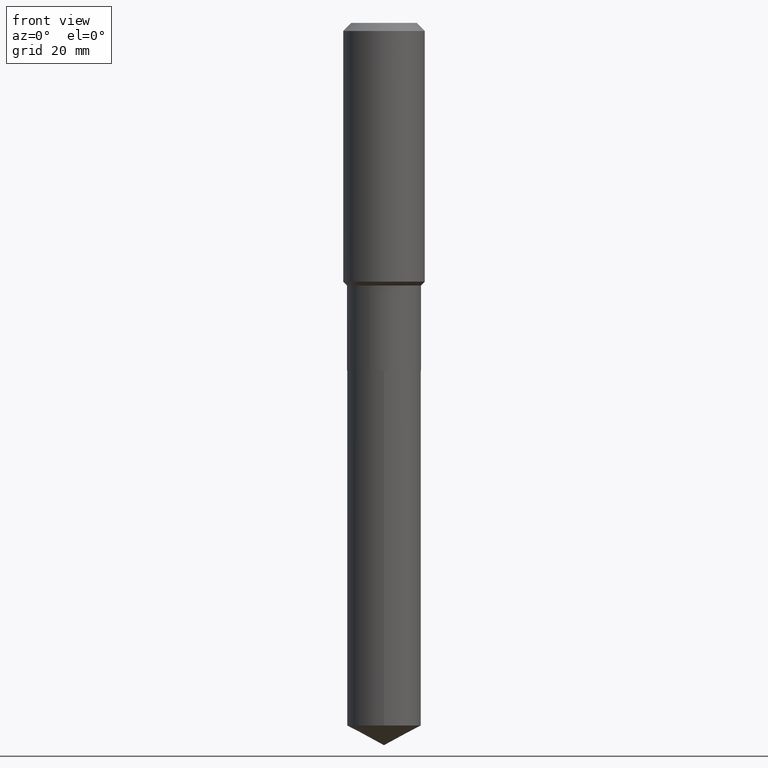
[diagram: clean part render]
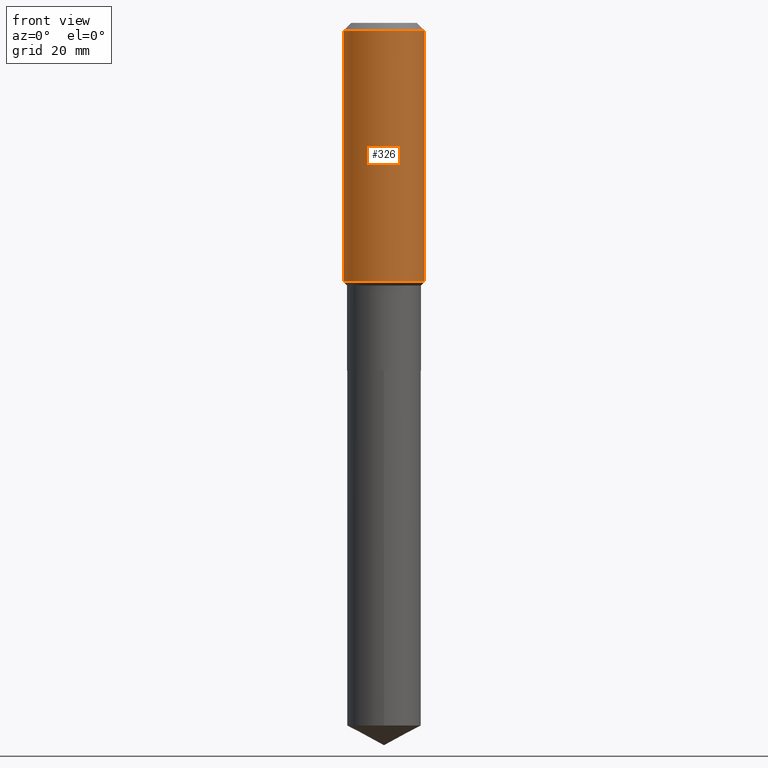
[diagram: same view with one face highlighted and labeled with its STEP entity id]
A machine part, front view. The second image highlights one B-rep face of the part: STEP entity #326.
In plain terms, the highlighted cylindrical surface (partial cylindrical patch) has radius 7.0002 mm, axis along (-0, 0, 1).
Its self-contained STEP definition (entity closure, byte-faithful):
#18 = VERTEX_POINT ( 'NONE', #377 ) ;
#19 = ORIENTED_EDGE ( 'NONE', *, *, #417, .T. ) ;
#28 = CARTESIAN_POINT ( 'NONE',  ( -0.2756000000000001227, 1.958255779754836984E-15, -1.355658510874252567E-29 ) ) ;
#29 = EDGE_LOOP ( 'NONE', ( #285, #86, #19, #295 ) ) ;
#49 = CIRCLE ( 'NONE', #307, 0.2756000000000000116 ) ;
#63 = CARTESIAN_POINT ( 'NONE',  ( -0.2756000000000000116, -1.191968173029778724E-15, -0.05512000000000035621 ) ) ;
#72 = EDGE_CURVE ( 'NONE', #18, #434, #322, .T. ) ;
#74 = DIRECTION ( 'NONE',  ( 1.000000000000000000, -6.982962677686265922E-15, 0.000000000000000000 ) ) ;
#83 = VERTEX_POINT ( 'NONE', #124 ) ;
#86 = ORIENTED_EDGE ( 'NONE', *, *, #72, .T. ) ;
#113 = CARTESIAN_POINT ( 'NONE',  ( 0.2756000000000001227, -1.924504513970336137E-15, 1.343874319409360548E-29 ) ) ;
#116 = DIRECTION ( 'NONE',  ( -2.445468806185136597E-29, 3.491481338843145583E-15, 1.000000000000000000 ) ) ;
#122 = AXIS2_PLACEMENT_3D ( 'NONE', #370, #116, #440 ) ;
#124 = CARTESIAN_POINT ( 'NONE',  ( 0.2756000000000000116, -2.116954965367370658E-15, -0.05512000000000035621 ) ) ;
#142 = FACE_OUTER_BOUND ( 'NONE', #29, .T. ) ;
#224 = LINE ( 'NONE', #113, #232 ) ;
#231 = CARTESIAN_POINT ( 'NONE',  ( 4.278103129540276898E-29, -6.107997454172196500E-15, -1.749399999999999400 ) ) ;
#232 = VECTOR ( 'NONE', #260, 39.37007874015748143 ) ;
#243 = VECTOR ( 'NONE', #336, 39.37007874015748143 ) ;
#251 = VERTEX_POINT ( 'NONE', #63 ) ;
#260 = DIRECTION ( 'NONE',  ( -2.445468806185136877E-29, 3.491481338843145188E-15, 1.000000000000000000 ) ) ;
#285 = ORIENTED_EDGE ( 'NONE', *, *, #445, .F. ) ;
#288 = EDGE_CURVE ( 'NONE', #251, #83, #49, .T. ) ;
#291 = CYLINDRICAL_SURFACE ( 'NONE', #122, 0.2756000000000001227 ) ;
#295 = ORIENTED_EDGE ( 'NONE', *, *, #288, .F. ) ;
#307 = AXIS2_PLACEMENT_3D ( 'NONE', #381, #448, #74 ) ;
#322 = CIRCLE ( 'NONE', #379, 0.2756000000000002337 ) ;
#326 = ADVANCED_FACE ( 'NONE', ( #142 ), #291, .T. ) ;
#336 = DIRECTION ( 'NONE',  ( -2.445468806185136877E-29, 3.491481338843145188E-15, 1.000000000000000000 ) ) ;
#340 = DIRECTION ( 'NONE',  ( 1.000000000000000000, -6.982962677686267499E-15, 0.000000000000000000 ) ) ;
#370 = CARTESIAN_POINT ( 'NONE',  ( 0.000000000000000000, 0.000000000000000000, 0.000000000000000000 ) ) ;
#375 = LINE ( 'NONE', #28, #243 ) ;
#377 = CARTESIAN_POINT ( 'NONE',  ( -0.2756000000000002337, -4.149741674417359122E-15, -1.749399999999999400 ) ) ;
#379 = AXIS2_PLACEMENT_3D ( 'NONE', #231, #457, #340 ) ;
#381 = CARTESIAN_POINT ( 'NONE',  ( 1.347942405969256063E-30, -1.924504513970354330E-16, -0.05512000000000035621 ) ) ;
#408 = CARTESIAN_POINT ( 'NONE',  ( 0.2756000000000002337, -8.032501968142533032E-15, -1.749399999999999400 ) ) ;
#417 = EDGE_CURVE ( 'NONE', #434, #83, #224, .T. ) ;
#434 = VERTEX_POINT ( 'NONE', #408 ) ;
#440 = DIRECTION ( 'NONE',  ( 1.000000000000000000, -6.982962677686267499E-15, 4.876176775795935793E-29 ) ) ;
#445 = EDGE_CURVE ( 'NONE', #18, #251, #375, .T. ) ;
#448 = DIRECTION ( 'NONE',  ( -2.445468806185136597E-29, 3.491481338843145583E-15, 1.000000000000000000 ) ) ;
#457 = DIRECTION ( 'NONE',  ( -2.445468806185136597E-29, 3.491481338843145583E-15, 1.000000000000000000 ) ) ;